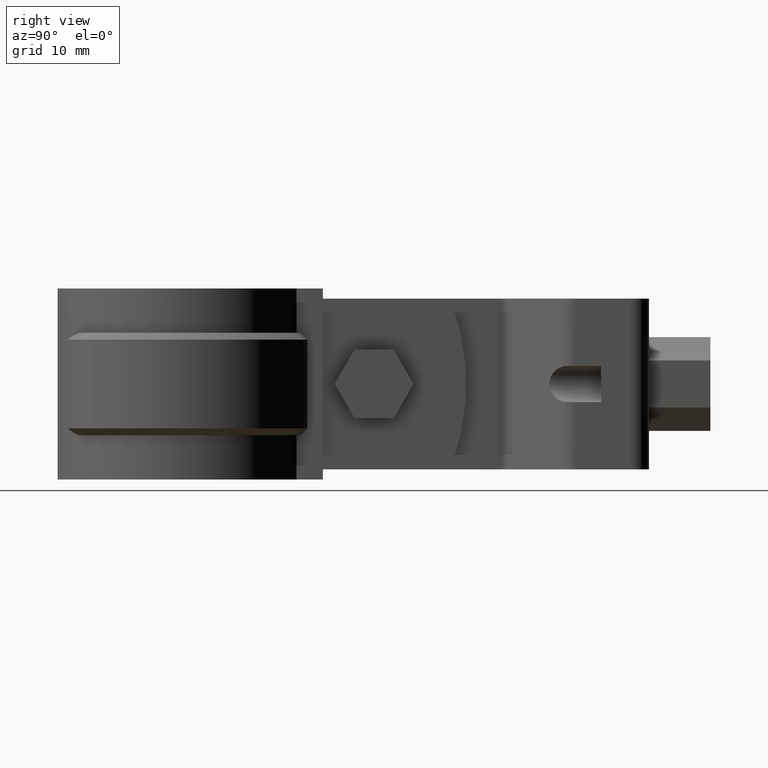
[diagram: clean part render]
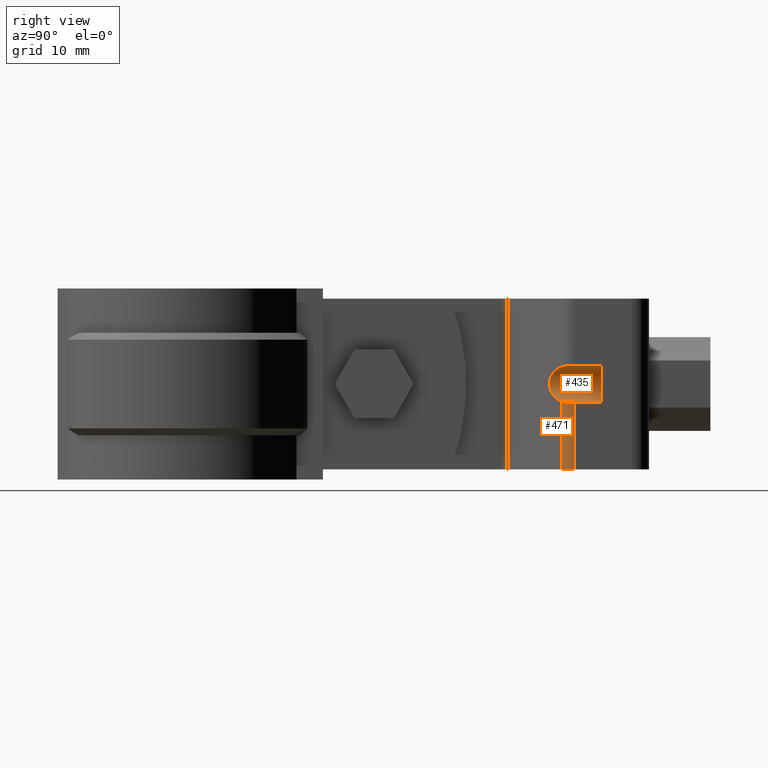
[diagram: same view with one multi-face feature highlighted, each face labeled with its STEP entity id]
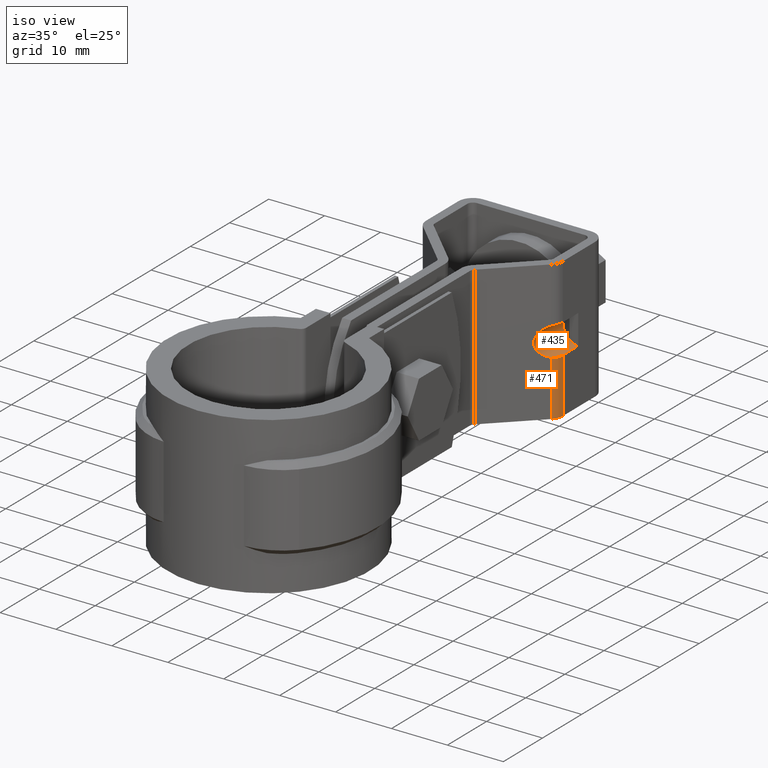
[diagram: same view with one multi-face feature highlighted, each face labeled with its STEP entity id]
A machine part, right view. The highlighted faces form ONE feature: a constant-radius fillet chain: 2 tangent blend faces with common blend radius 2.625 mm. The faces share edges in the B-rep.
A second angle (iso view) of the same feature is appended — it is thin or edge-on in the first view.
Their STEP definitions:
[1] entity #471 (Cylinder):
#471 = ADVANCED_FACE( '', ( #849 ), #850, .T. );
#849 = FACE_OUTER_BOUND( '', #1731, .T. );
#850 = CYLINDRICAL_SURFACE( '', #1732, 2.59999999999999 );
#1731 = EDGE_LOOP( '', ( #4271, #4272, #4273, #4274 ) );
#1732 = AXIS2_PLACEMENT_3D( '', #4275, #4276, #4277 );
#4271 = ORIENTED_EDGE( '', *, *, #5102, .T. );
#4272 = ORIENTED_EDGE( '', *, *, #5095, .T. );
#4273 = ORIENTED_EDGE( '', *, *, #5029, .F. );
#4274 = ORIENTED_EDGE( '', *, *, #5010, .T. );
#4275 = CARTESIAN_POINT( '', ( 9.65000010622100, 57.6977523679104, 1.73735609232395E-008 ) );
#4276 = DIRECTION( '', ( -3.82133362428794E-011, -1.31468003150562E-010, 1.00000000000000 ) );
#4277 = DIRECTION( '', ( 7.94778790044289E-010, 1.00000000000000, 1.31468003180933E-010 ) );
#5010 = EDGE_CURVE( '', #5845, #5842, #5846, .T. );
#5029 = EDGE_CURVE( '', #5845, #5876, #5877, .T. );
#5095 = EDGE_CURVE( '', #5980, #5876, #5981, .T. );
#5102 = EDGE_CURVE( '', #5842, #5980, #5990, .T. );
#5842 = VERTEX_POINT( '', #8339 );
#5845 = VERTEX_POINT( '', #8342 );
#5846 = B_SPLINE_CURVE_WITH_KNOTS( '', 3, ( #8343, #8344, #8345, #8346, #8347, #8348, #8349, #8350, #8351, #8352 ), .UNSPECIFIED., .F., .F., ( 4, 2, 2, 2, 4 ), ( 0.000000000000000, 0.000517346174284563, 0.00103469234856913, 0.00155203852285369, 0.00206938469713825 ), .UNSPECIFIED. );
#5876 = VERTEX_POINT( '', #8409 );
#5877 = LINE( '', #8410, #8411 );
#5980 = VERTEX_POINT( '', #8581 );
#5981 = CIRCLE( '', #8582, 2.59999999999999 );
#5990 = LINE( '', #8595, #8596 );
#8339 = CARTESIAN_POINT( '', ( 11.4656420776956, 55.8367192606953, -15.0312610291000 ) );
#8342 = CARTESIAN_POINT( '', ( 12.2500001067999, 57.6977523678356, -15.1499999825271 ) );
#8343 = CARTESIAN_POINT( '', ( 12.2500001067999, 57.6977523678356, -15.1499999825271 ) );
#8344 = CARTESIAN_POINT( '', ( 12.2500001066609, 57.5228623035874, -15.1499999825500 ) );
#8345 = CARTESIAN_POINT( '', ( 12.2325331419325, 57.3509198956958, -15.1501636785781 ) );
#8346 = CARTESIAN_POINT( '', ( 12.1640564587030, 57.0127047057419, -15.1488273457981 ) );
#8347 = CARTESIAN_POINT( '', ( 12.1121298178247, 56.8445738575010, -15.1472759355092 ) );
#8348 = CARTESIAN_POINT( '', ( 11.9772120419526, 56.5255404023730, -15.1367906189000 ) );
#8349 = CARTESIAN_POINT( '', ( 11.8947255762084, 56.3745291830860, -15.1279277661973 ) );
#8350 = CARTESIAN_POINT( '', ( 11.7003963091689, 56.0897761734176, -15.0942551925598 ) );
#8351 = CARTESIAN_POINT( '', ( 11.5880225352707, 55.9561148233539, -15.0691828761320 ) );
#8352 = CARTESIAN_POINT( '', ( 11.4656420776956, 55.8367192606953, -15.0312610291000 ) );
#8409 = CARTESIAN_POINT( '', ( 12.2500001071763, 57.6977523691307, -24.9999999825271 ) );
#8410 = CARTESIAN_POINT( '', ( 12.2500001062210, 57.6977523658440, 1.74729120061556E-008 ) );
#8411 = VECTOR( '', #9380, 1000.00000000000 );
#8581 = CARTESIAN_POINT( '', ( 11.4656420780765, 55.8367192620060, -24.9999999828017 ) );
#8582 = AXIS2_PLACEMENT_3D( '', #9482, #9483, #9484 );
#8595 = CARTESIAN_POINT( '', ( 11.4656420771212, 55.8367192587193, 1.71982705854390E-008 ) );
#8596 = VECTOR( '', #9495, 1000.00000000000 );
#9380 = DIRECTION( '', ( 3.82133362428794E-011, 1.31468003150562E-010, -1.00000000000000 ) );
#9482 = CARTESIAN_POINT( '', ( 9.65000010717634, 57.6977523711971, -24.9999999826264 ) );
#9483 = DIRECTION( '', ( -3.82133362428794E-011, -1.31468003150562E-010, 1.00000000000000 ) );
#9484 = DIRECTION( '', ( 0.698323834961612, -0.715781965073519, -6.74171421275957E-011 ) );
#9495 = DIRECTION( '', ( 3.82133362428794E-011, 1.31468003150562E-010, -1.00000000000000 ) );
[2] entity #435 (Cylinder):
#435 = ADVANCED_FACE( '', ( #771 ), #772, .F. );
#771 = FACE_OUTER_BOUND( '', #1653, .T. );
#772 = CYLINDRICAL_SURFACE( '', #1654, 2.64999999999997 );
#1653 = EDGE_LOOP( '', ( #3955, #3956, #3957, #3958, #3959, #3960, #3961, #3962 ) );
#1654 = AXIS2_PLACEMENT_3D( '', #3963, #3964, #3965 );
#3955 = ORIENTED_EDGE( '', *, *, #5009, .F. );
#3956 = ORIENTED_EDGE( '', *, *, #5010, .F. );
#3957 = ORIENTED_EDGE( '', *, *, #5011, .T. );
#3958 = ORIENTED_EDGE( '', *, *, #5012, .T. );
#3959 = ORIENTED_EDGE( '', *, *, #5013, .T. );
#3960 = ORIENTED_EDGE( '', *, *, #5014, .T. );
#3961 = ORIENTED_EDGE( '', *, *, #5015, .F. );
#3962 = ORIENTED_EDGE( '', *, *, #5016, .F. );
#3963 = CARTESIAN_POINT( '', ( 12.2500001018538, 51.6019465683729, -12.4999999833285 ) );
#3964 = DIRECTION( '', ( -7.94778790044289E-010, -1.00000000000000, -1.31468003180933E-010 ) );
#3965 = DIRECTION( '', ( -3.82343921266954E-011, -1.31468003150545E-010, 1.00000000000000 ) );
#5009 = EDGE_CURVE( '', #5842, #5843, #5844, .T. );
#5010 = EDGE_CURVE( '', #5845, #5842, #5846, .T. );
#5011 = EDGE_CURVE( '', #5845, #5847, #5848, .T. );
#5012 = EDGE_CURVE( '', #5847, #5849, #5850, .T. );
#5013 = EDGE_CURVE( '', #5849, #5851, #5852, .T. );
#5014 = EDGE_CURVE( '', #5851, #5853, #5854, .T. );
#5015 = EDGE_CURVE( '', #5855, #5853, #5856, .T. );
#5016 = EDGE_CURVE( '', #5843, #5855, #5857, .T. );
#5842 = VERTEX_POINT( '', #8339 );
#5843 = VERTEX_POINT( '', #8340 );
#5844 = ELLIPSE( '', #8341, 3.70224472166266, 2.64999999999997 );
#5845 = VERTEX_POINT( '', #8342 );
#5846 = B_SPLINE_CURVE_WITH_KNOTS( '', 3, ( #8343, #8344, #8345, #8346, #8347, #8348, #8349, #8350, #8351, #8352 ), .UNSPECIFIED., .F., .F., ( 4, 2, 2, 2, 4 ), ( 0.000000000000000, 0.000517346174284563, 0.00103469234856913, 0.00155203852285369, 0.00206938469713825 ), .UNSPECIFIED. );
#5847 = VERTEX_POINT( '', #8353 );
#5848 = LINE( '', #8354, #8355 );
#5849 = VERTEX_POINT( '', #8356 );
#5850 = CIRCLE( '', #8357, 2.64999999999997 );
#5851 = VERTEX_POINT( '', #8358 );
#5852 = CIRCLE( '', #8359, 2.64999999999997 );
#5853 = VERTEX_POINT( '', #8360 );
#5854 = CIRCLE( '', #8361, 2.64999999999997 );
#5855 = VERTEX_POINT( '', #8362 );
#5856 = LINE( '', #8363, #8364 );
#5857 = B_SPLINE_CURVE_WITH_KNOTS( '', 3, ( #8365, #8366, #8367, #8368, #8369, #8370, #8371, #8372 ), .UNSPECIFIED., .F., .F., ( 4, 2, 2, 4 ), ( 1.73472347597677E-018, 0.000516787748161303, 0.00103357549632260, 0.00206715099264519 ), .UNSPECIFIED. );
#8339 = CARTESIAN_POINT( '', ( 11.4656420776956, 55.8367192606953, -15.0312610291000 ) );
#8340 = CARTESIAN_POINT( '', ( 11.4656420775021, 55.8367192600298, -9.96873893650349 ) );
#8341 = AXIS2_PLACEMENT_3D( '', #9352, #9353, #9354 );
#8342 = CARTESIAN_POINT( '', ( 12.2500001067999, 57.6977523678356, -15.1499999825271 ) );
#8343 = CARTESIAN_POINT( '', ( 12.2500001067999, 57.6977523678356, -15.1499999825271 ) );
#8344 = CARTESIAN_POINT( '', ( 12.2500001066609, 57.5228623035874, -15.1499999825500 ) );
#8345 = CARTESIAN_POINT( '', ( 12.2325331419325, 57.3509198956958, -15.1501636785781 ) );
#8346 = CARTESIAN_POINT( '', ( 12.1640564587030, 57.0127047057419, -15.1488273457981 ) );
#8347 = CARTESIAN_POINT( '', ( 12.1121298178247, 56.8445738575010, -15.1472759355092 ) );
#8348 = CARTESIAN_POINT( '', ( 11.9772120419526, 56.5255404023730, -15.1367906189000 ) );
#8349 = CARTESIAN_POINT( '', ( 11.8947255762084, 56.3745291830860, -15.1279277661973 ) );
#8350 = CARTESIAN_POINT( '', ( 11.7003963091689, 56.0897761734176, -15.0942551925598 ) );
#8351 = CARTESIAN_POINT( '', ( 11.5880225352707, 55.9561148233539, -15.0691828761320 ) );
#8352 = CARTESIAN_POINT( '', ( 11.4656420776956, 55.8367192606953, -15.0312610291000 ) );
#8353 = CARTESIAN_POINT( '', ( 12.2500001099029, 61.6019465687213, -15.1499999820138 ) );
#8354 = CARTESIAN_POINT( '', ( 12.2500001019551, 51.6019465687213, -15.1499999833285 ) );
#8355 = VECTOR( '', #9355, 1000.00000000000 );
#8356 = CARTESIAN_POINT( '', ( 10.6500001098824, 61.6019465699223, -14.6124629995027 ) );
#8357 = AXIS2_PLACEMENT_3D( '', #9356, #9357, #9358 );
#8358 = CARTESIAN_POINT( '', ( 10.6500001097209, 61.6019465693669, -10.3875369646472 ) );
#8359 = AXIS2_PLACEMENT_3D( '', #9359, #9360, #9361 );
#8360 = CARTESIAN_POINT( '', ( 12.2500001097004, 61.6019465680245, -9.84999998201383 ) );
#8361 = AXIS2_PLACEMENT_3D( '', #9362, #9363, #9364 );
#8362 = CARTESIAN_POINT( '', ( 12.2500001065974, 57.6977523671389, -9.84999998252711 ) );
#8363 = CARTESIAN_POINT( '', ( 12.2500001017526, 51.6019465680245, -9.84999998332851 ) );
#8364 = VECTOR( '', #9365, 1000.00000000000 );
#8365 = CARTESIAN_POINT( '', ( 11.4656420775021, 55.8367192600298, -9.96873893650348 ) );
#8366 = CARTESIAN_POINT( '', ( 11.5880008646473, 55.9560936807993, -9.93082380441315 ) );
#8367 = CARTESIAN_POINT( '', ( 11.6979910779007, 56.0867926460779, -9.90626131295006 ) );
#8368 = CARTESIAN_POINT( '', ( 11.8919854055865, 56.3699872667846, -9.87244984461446 ) );
#8369 = CARTESIAN_POINT( '', ( 11.9765771514112, 56.5243124652492, -9.86327471480884 ) );
#8370 = CARTESIAN_POINT( '', ( 12.1789957085563, 57.0021453969263, -9.84749562327332 ) );
#8371 = CARTESIAN_POINT( '', ( 12.2500001063196, 57.3482105250917, -9.84999998257307 ) );
#8372 = CARTESIAN_POINT( '', ( 12.2500001065974, 57.6977523671389, -9.84999998252711 ) );
#9352 = CARTESIAN_POINT( '', ( 12.2500001058277, 56.6019465683731, -12.4999999826712 ) );
#9353 = DIRECTION( '', ( -0.698323834961609, 0.715781965073521, 6.74171070251485E-011 ) );
#9354 = DIRECTION( '', ( 0.715781965073521, 0.698323834961609, 1.19159693022799E-010 ) );
#9355 = DIRECTION( '', ( 7.94778790044288E-010, 1.00000000000000, 1.31468003180933E-010 ) );
#9356 = CARTESIAN_POINT( '', ( 12.2500001098016, 61.6019465683729, -12.4999999820138 ) );
#9357 = DIRECTION( '', ( 7.94778790044288E-010, 1.00000000000000, 1.31468003180933E-010 ) );
#9358 = DIRECTION( '', ( -3.82127899098248E-011, -1.31468003150563E-010, 1.00000000000000 ) );
#9359 = CARTESIAN_POINT( '', ( 12.2500001098016, 61.6019465683729, -12.4999999820138 ) );
#9360 = DIRECTION( '', ( 7.94778790044288E-010, 1.00000000000000, 1.31468003180933E-010 ) );
#9361 = DIRECTION( '', ( -3.82127899098248E-011, -1.31468003150563E-010, 1.00000000000000 ) );
#9362 = CARTESIAN_POINT( '', ( 12.2500001098016, 61.6019465683729, -12.4999999820138 ) );
#9363 = DIRECTION( '', ( 7.94778790044288E-010, 1.00000000000000, 1.31468003180933E-010 ) );
#9364 = DIRECTION( '', ( -3.82127899098248E-011, -1.31468003150563E-010, 1.00000000000000 ) );
#9365 = DIRECTION( '', ( 7.94778790044288E-010, 1.00000000000000, 1.31468003180933E-010 ) );